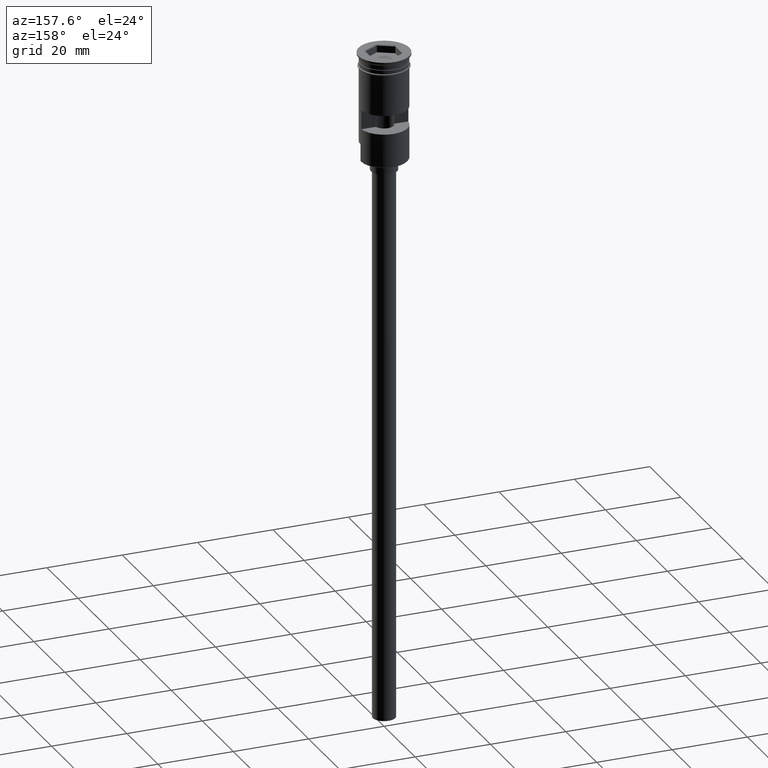
[diagram: clean part render]
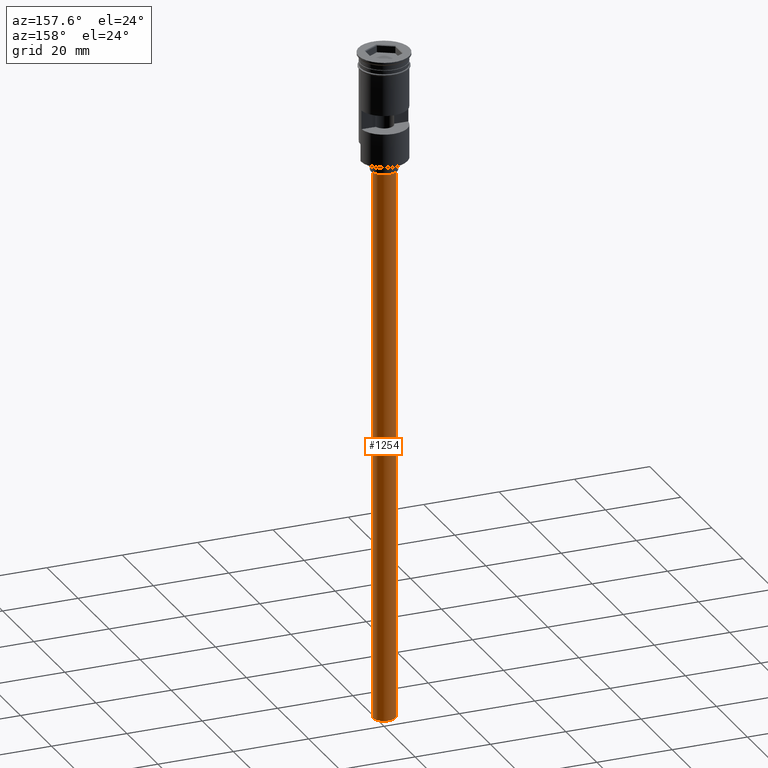
[diagram: same view with one face highlighted and labeled with its STEP entity id]
A machine part, auxiliary view. The second image highlights one B-rep face of the part: STEP entity #1254.
In plain terms, the highlighted cylindrical surface (edge-blend (fillet) strip) has radius 3 mm, axis along (-0, -0, 1).
Its self-contained STEP definition (entity closure, byte-faithful):
#72 = CARTESIAN_POINT ( 'NONE',  ( -3.000000000000000444, 3.673940397442060361E-16, -178.5000000000000000 ) ) ;
#190 = AXIS2_PLACEMENT_3D ( 'NONE', #701, #802, #1548 ) ;
#292 = VECTOR ( 'NONE', #898, 1000.000000000000000 ) ;
#296 = VECTOR ( 'NONE', #1045, 1000.000000000000000 ) ;
#389 = CARTESIAN_POINT ( 'NONE',  ( 3.000000000000000444, 0.000000000000000000, -178.5000000000000000 ) ) ;
#414 = VERTEX_POINT ( 'NONE', #1270 ) ;
#425 = AXIS2_PLACEMENT_3D ( 'NONE', #1019, #1276, #628 ) ;
#486 = VERTEX_POINT ( 'NONE', #1023 ) ;
#513 = CYLINDRICAL_SURFACE ( 'NONE', #425, 3.000000000000000444 ) ;
#549 = CARTESIAN_POINT ( 'NONE',  ( 0.000000000000000000, 0.000000000000000000, -178.5000000000000000 ) ) ;
#575 = EDGE_CURVE ( 'NONE', #1417, #1128, #1519, .T. ) ;
#628 = DIRECTION ( 'NONE',  ( 1.000000000000000000, 0.000000000000000000, 0.000000000000000000 ) ) ;
#701 = CARTESIAN_POINT ( 'NONE',  ( 0.000000000000000000, 0.000000000000000000, -31.50000000000000000 ) ) ;
#802 = DIRECTION ( 'NONE',  ( 0.000000000000000000, 0.000000000000000000, -1.000000000000000000 ) ) ;
#898 = DIRECTION ( 'NONE',  ( -0.000000000000000000, -0.000000000000000000, 1.000000000000000000 ) ) ;
#939 = ORIENTED_EDGE ( 'NONE', *, *, #1429, .T. ) ;
#962 = DIRECTION ( 'NONE',  ( -1.000000000000000000, 0.000000000000000000, 0.000000000000000000 ) ) ;
#965 = EDGE_CURVE ( 'NONE', #1128, #486, #1153, .T. ) ;
#1019 = CARTESIAN_POINT ( 'NONE',  ( 0.000000000000000000, 0.000000000000000000, -178.5000000000000000 ) ) ;
#1023 = CARTESIAN_POINT ( 'NONE',  ( 3.000000000000000444, 0.000000000000000000, -31.50000000000000000 ) ) ;
#1045 = DIRECTION ( 'NONE',  ( -0.000000000000000000, -0.000000000000000000, 1.000000000000000000 ) ) ;
#1062 = EDGE_CURVE ( 'NONE', #414, #486, #1596, .T. ) ;
#1078 = DIRECTION ( 'NONE',  ( 0.000000000000000000, 0.000000000000000000, -1.000000000000000000 ) ) ;
#1101 = ORIENTED_EDGE ( 'NONE', *, *, #1062, .T. ) ;
#1116 = FACE_OUTER_BOUND ( 'NONE', #1231, .T. ) ;
#1128 = VERTEX_POINT ( 'NONE', #1595 ) ;
#1153 = LINE ( 'NONE', #389, #292 ) ;
#1231 = EDGE_LOOP ( 'NONE', ( #1316, #939, #1101, #1539 ) ) ;
#1254 = ADVANCED_FACE ( 'NONE', ( #1116 ), #513, .T. ) ;
#1268 = AXIS2_PLACEMENT_3D ( 'NONE', #549, #1078, #962 ) ;
#1270 = CARTESIAN_POINT ( 'NONE',  ( -3.000000000000000444, 3.673940397442060361E-16, -31.50000000000000000 ) ) ;
#1276 = DIRECTION ( 'NONE',  ( -0.000000000000000000, -0.000000000000000000, 1.000000000000000000 ) ) ;
#1316 = ORIENTED_EDGE ( 'NONE', *, *, #575, .F. ) ;
#1417 = VERTEX_POINT ( 'NONE', #1440 ) ;
#1425 = LINE ( 'NONE', #72, #296 ) ;
#1429 = EDGE_CURVE ( 'NONE', #1417, #414, #1425, .T. ) ;
#1440 = CARTESIAN_POINT ( 'NONE',  ( -3.000000000000000444, 3.673940397442060361E-16, -178.5000000000000000 ) ) ;
#1519 = CIRCLE ( 'NONE', #1268, 3.000000000000000444 ) ;
#1539 = ORIENTED_EDGE ( 'NONE', *, *, #965, .F. ) ;
#1548 = DIRECTION ( 'NONE',  ( -1.000000000000000000, 0.000000000000000000, 0.000000000000000000 ) ) ;
#1595 = CARTESIAN_POINT ( 'NONE',  ( 3.000000000000000444, 0.000000000000000000, -178.5000000000000000 ) ) ;
#1596 = CIRCLE ( 'NONE', #190, 3.000000000000000444 ) ;